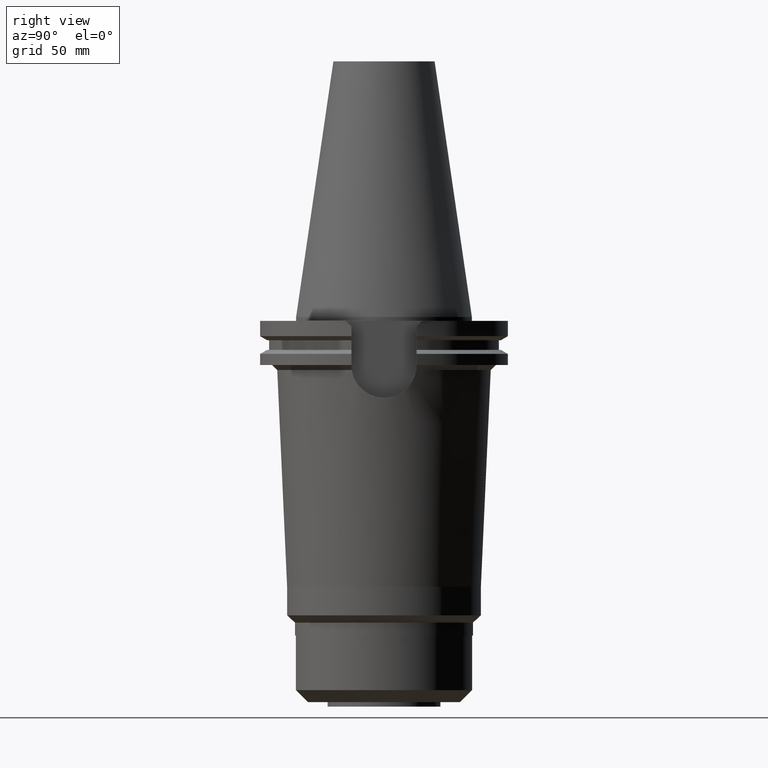
[diagram: clean part render]
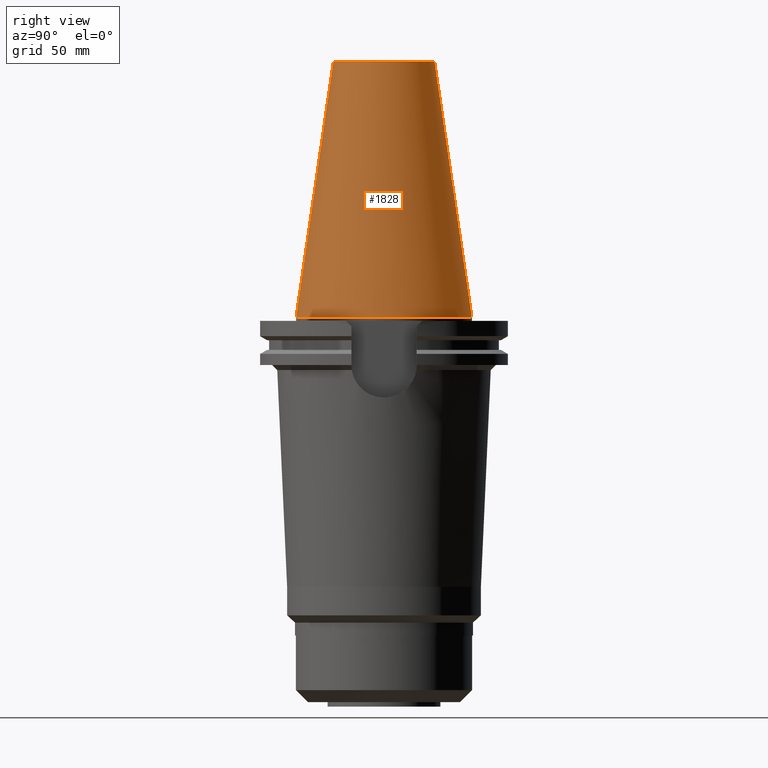
[diagram: same view with one face highlighted and labeled with its STEP entity id]
A machine part, right view. The second image highlights one B-rep face of the part: STEP entity #1828.
In plain terms, the highlighted conical surface has half-angle 8.297 deg.
Its self-contained STEP definition (entity closure, byte-faithful):
#26=CARTESIAN_POINT('',(0.E0,1.846767373114E-14,1.016E2));
#27=DIRECTION('',(0.E0,0.E0,-1.E0));
#28=DIRECTION('',(0.E0,1.E0,0.E0));
#29=AXIS2_PLACEMENT_3D('',#26,#27,#28);
#50=DIRECTION('',(0.E0,-1.443069799457E-1,-9.895329683942E-1));
#51=VECTOR('',#50,1.026746993229E2);
#52=CARTESIAN_POINT('',(0.E0,-2.010832422387E1,1.016E2));
#53=LINE('',#52,#51);
#65=DIRECTION('',(0.E0,1.443069799457E-1,-9.895329683942E-1));
#66=VECTOR('',#65,1.026746993229E2);
#67=CARTESIAN_POINT('',(0.E0,2.010832422387E1,1.016E2));
#68=LINE('',#67,#66);
#72=CARTESIAN_POINT('',(0.E0,1.846767373114E-14,8.242295734817E-13));
#73=DIRECTION('',(0.E0,0.E0,-1.E0));
#74=DIRECTION('',(0.E0,1.E0,0.E0));
#75=AXIS2_PLACEMENT_3D('',#72,#73,#74);
#1540=CARTESIAN_POINT('',(0.E0,-2.010832422388E1,1.016E2));
#1541=CARTESIAN_POINT('',(0.E0,2.010832422388E1,1.016E2));
#1542=VERTEX_POINT('',#1540);
#1543=VERTEX_POINT('',#1541);
#1722=CARTESIAN_POINT('',(0.E0,3.4925E1,5.115907697473E-13));
#1723=VERTEX_POINT('',#1722);
#1724=CARTESIAN_POINT('',(0.E0,-3.4925E1,5.115907697473E-13));
#1725=VERTEX_POINT('',#1724);
#1816=CARTESIAN_POINT('',(0.E0,1.846767373114E-14,5.08E1));
#1817=DIRECTION('',(0.E0,0.E0,-1.E0));
#1818=DIRECTION('',(0.E0,-1.E0,0.E0));
#1819=AXIS2_PLACEMENT_3D('',#1816,#1817,#1818);
#1820=CONICAL_SURFACE('',#1819,2.751666211194E1,8.29715E0);
#1821=ORIENTED_EDGE('',*,*,#1806,.T.);
#1823=ORIENTED_EDGE('',*,*,#1822,.T.);
#1824=ORIENTED_EDGE('',*,*,#1809,.F.);
#1825=ORIENTED_EDGE('',*,*,#1790,.F.);
#1826=EDGE_LOOP('',(#1821,#1823,#1824,#1825));
#1827=FACE_OUTER_BOUND('',#1826,.F.);
#30=CIRCLE('',#29,2.010832422388E1);
#76=CIRCLE('',#75,3.4925E1);
#1790=EDGE_CURVE('',#1543,#1542,#30,.T.);
#1806=EDGE_CURVE('',#1543,#1723,#68,.T.);
#1809=EDGE_CURVE('',#1542,#1725,#53,.T.);
#1822=EDGE_CURVE('',#1723,#1725,#76,.T.);
#1828=ADVANCED_FACE('',(#1827),#1820,.T.);